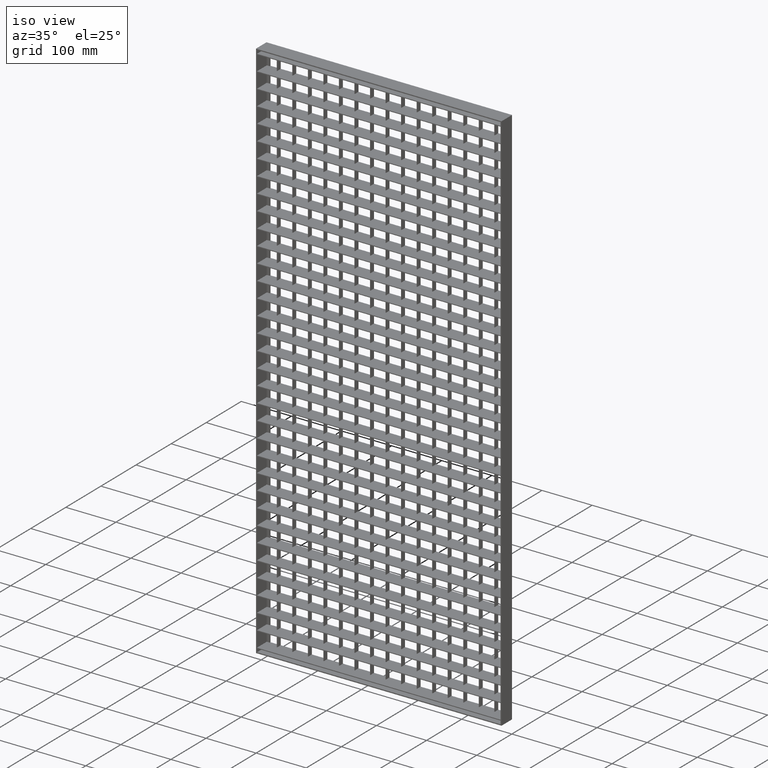
[diagram: clean part render]
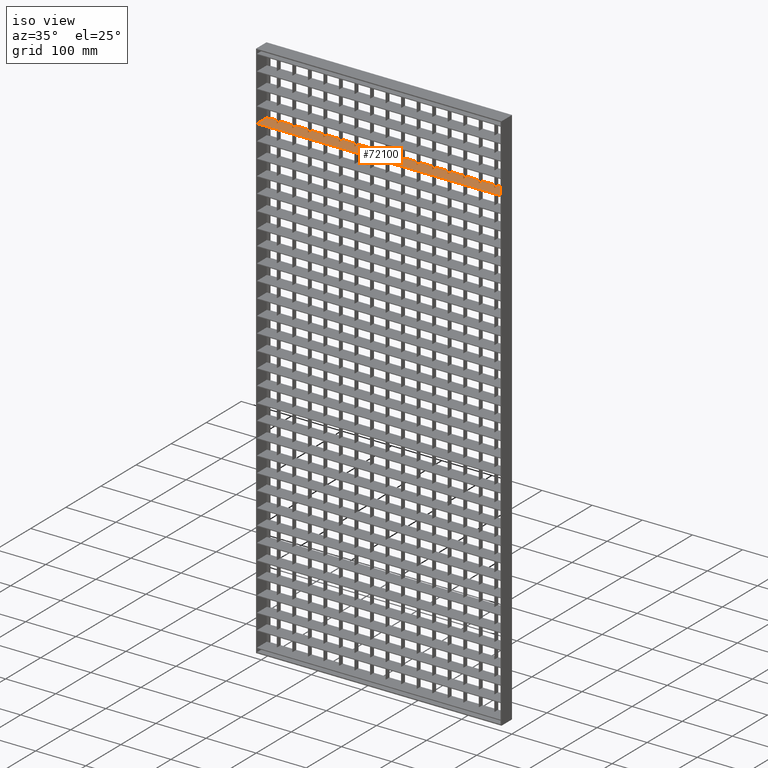
[diagram: same view with one face highlighted and labeled with its STEP entity id]
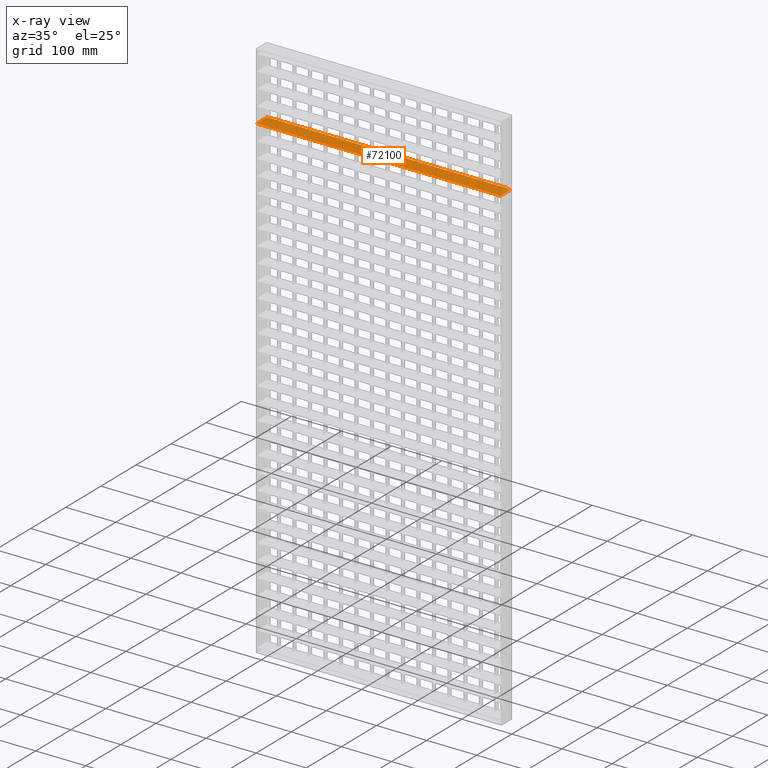
[diagram: x-ray of the same camera — body ghosted, the highlighted face saturated]
A machine part, iso view. The second image highlights one B-rep face of the part: STEP entity #72100.
The next image is the same camera in x-ray: the body ghosted, the highlighted face saturated — about 0% of this face is hidden behind the body in this view.
In plain terms, the highlighted planar face has unit normal (0, 0, 1).
Its self-contained STEP definition (entity closure, byte-faithful):
#72 = DIRECTION ( 'NONE',  ( -1.000000000000000000, -3.061616997868382600E-016, 0.0000000000000000000 ) ) ;
#113 = EDGE_CURVE ( 'NONE', #56566, #2293, #17961, .T. ) ;
#226 = DIRECTION ( 'NONE',  ( -0.0000000000000000000, 1.000000000000000000, 0.0000000000000000000 ) ) ;
#325 = EDGE_CURVE ( 'NONE', #58824, #30288, #18873, .T. ) ;
#619 = CARTESIAN_POINT ( 'NONE',  ( 518.0374765917513300, 15.00000000000015500, -134.7500000000001400 ) ) ;
#930 = EDGE_CURVE ( 'NONE', #43786, #52419, #75637, .T. ) ;
#936 = VECTOR ( 'NONE', #77395, 1000.000000000000000 ) ;
#1126 = VECTOR ( 'NONE', #29047, 1000.000000000000000 ) ;
#1202 = LINE ( 'NONE', #31474, #34933 ) ;
#1244 = VECTOR ( 'NONE', #17277, 1000.000000000000000 ) ;
#1264 = VERTEX_POINT ( 'NONE', #51022 ) ;
#1433 = CARTESIAN_POINT ( 'NONE',  ( 214.5000000000000300, 15.00000000000006000, -134.7500000000001400 ) ) ;
#1537 = LINE ( 'NONE', #3073, #9286 ) ;
#1783 = VERTEX_POINT ( 'NONE', #30168 ) ;
#1809 = CARTESIAN_POINT ( 'NONE',  ( 2.000000000000003100, 13.00000000000000400, -134.7500000000001400 ) ) ;
#1990 = AXIS2_PLACEMENT_3D ( 'NONE', #28885, #35868, #79005 ) ;
#2050 = VERTEX_POINT ( 'NONE', #27419 ) ;
#2218 = VERTEX_POINT ( 'NONE', #59469 ) ;
#2293 = VERTEX_POINT ( 'NONE', #17184 ) ;
#2409 = CARTESIAN_POINT ( 'NONE',  ( 518.0374765917513300, 5.000000000000397900, -134.7500000000001400 ) ) ;
#2921 = VERTEX_POINT ( 'NONE', #7007 ) ;
#3013 = DIRECTION ( 'NONE',  ( -0.0000000000000000000, 1.000000000000000000, 0.0000000000000000000 ) ) ;
#3073 = CARTESIAN_POINT ( 'NONE',  ( 338.5000000000000000, -14.99999999999984500, -134.7500000000001400 ) ) ;
#3263 = VERTEX_POINT ( 'NONE', #17153 ) ;
#3342 = EDGE_CURVE ( 'NONE', #67736, #43047, #9574, .T. ) ;
#3476 = CARTESIAN_POINT ( 'NONE',  ( 213.4999999999999700, 4.999999999999998200, -134.7500000000001400 ) ) ;
#3570 = LINE ( 'NONE', #9510, #71939 ) ;
#3632 = EDGE_CURVE ( 'NONE', #68823, #19344, #29681, .T. ) ;
#3732 = DIRECTION ( 'NONE',  ( -1.000000000000000000, -3.061616997868382600E-016, 0.0000000000000000000 ) ) ;
#3793 = VECTOR ( 'NONE', #29387, 1000.000000000000000 ) ;
#3906 = CARTESIAN_POINT ( 'NONE',  ( 276.5000000000000000, 15.00000000000000000, -134.7500000000001400 ) ) ;
#4040 = DIRECTION ( 'NONE',  ( -1.000000000000000000, 8.673617379884027600E-016, 0.0000000000000000000 ) ) ;
#4176 = PLANE ( 'NONE',  #1990 ) ;
#4179 = ORIENTED_EDGE ( 'NONE', *, *, #36564, .T. ) ;
#4561 = CARTESIAN_POINT ( 'NONE',  ( 369.5000000000001100, 5.000000000000000000, -134.7500000000001400 ) ) ;
#4643 = VERTEX_POINT ( 'NONE', #24504 ) ;
#4694 = EDGE_CURVE ( 'NONE', #77464, #2218, #36642, .T. ) ;
#4762 = LINE ( 'NONE', #33299, #51984 ) ;
#4959 = DIRECTION ( 'NONE',  ( 1.000000000000000000, 8.673617379884027600E-016, -0.0000000000000000000 ) ) ;
#5020 = VECTOR ( 'NONE', #4959, 1000.000000000000000 ) ;
#5085 = VERTEX_POINT ( 'NONE', #71567 ) ;
#5525 = LINE ( 'NONE', #34404, #76862 ) ;
#5780 = VECTOR ( 'NONE', #26511, 1000.000000000000000 ) ;
#5845 = ORIENTED_EDGE ( 'NONE', *, *, #20689, .F. ) ;
#5872 = DIRECTION ( 'NONE',  ( 0.0000000000000000000, -1.000000000000000000, 0.0000000000000000000 ) ) ;
#6057 = EDGE_CURVE ( 'NONE', #76311, #1783, #66258, .T. ) ;
#6064 = CARTESIAN_POINT ( 'NONE',  ( 518.0374765917513300, 4.999999999999922700, -134.7500000000001400 ) ) ;
#6506 = LINE ( 'NONE', #45898, #43061 ) ;
#6702 = ORIENTED_EDGE ( 'NONE', *, *, #29378, .T. ) ;
#6751 = LINE ( 'NONE', #28334, #936 ) ;
#6969 = CARTESIAN_POINT ( 'NONE',  ( 2.000000000000003100, 13.00000000000000500, -134.7500000000001400 ) ) ;
#7007 = CARTESIAN_POINT ( 'NONE',  ( 89.50000000000000000, 15.00000000000000000, -134.7500000000001400 ) ) ;
#7462 = DIRECTION ( 'NONE',  ( 0.0000000000000000000, -1.000000000000000000, 0.0000000000000000000 ) ) ;
#7461 = CARTESIAN_POINT ( 'NONE',  ( 482.0000000000000000, 15.00000000000000400, -134.7500000000001400 ) ) ;
#7491 = DIRECTION ( 'NONE',  ( -1.000000000000000000, -3.061616997868382600E-016, 0.0000000000000000000 ) ) ;
#8204 = VECTOR ( 'NONE', #73620, 1000.000000000000000 ) ;
#8228 = DIRECTION ( 'NONE',  ( -0.0000000000000000000, 1.000000000000000000, 0.0000000000000000000 ) ) ;
#8349 = EDGE_CURVE ( 'NONE', #77904, #78270, #72594, .T. ) ;
#8405 = LINE ( 'NONE', #36523, #50813 ) ;
#8579 = VERTEX_POINT ( 'NONE', #79324 ) ;
#8692 = VERTEX_POINT ( 'NONE', #67675 ) ;
#9048 = CARTESIAN_POINT ( 'NONE',  ( 482.0000000000001700, 13.00000000000035300, -134.7500000000001400 ) ) ;
#9069 = EDGE_CURVE ( 'NONE', #25246, #2050, #22475, .T. ) ;
#9276 = ORIENTED_EDGE ( 'NONE', *, *, #39097, .F. ) ;
#9286 = VECTOR ( 'NONE', #14952, 1000.000000000000000 ) ;
#9353 = DIRECTION ( 'NONE',  ( 0.0000000000000000000, -1.000000000000000000, 0.0000000000000000000 ) ) ;
#9400 = ORIENTED_EDGE ( 'NONE', *, *, #27641, .T. ) ;
#9483 = CARTESIAN_POINT ( 'NONE',  ( 58.50000000000000000, 15.00000000000000000, -134.7500000000001400 ) ) ;
#9510 = CARTESIAN_POINT ( 'NONE',  ( 518.0374765917513300, -14.99999999999984500, -134.7500000000001400 ) ) ;
#9574 = LINE ( 'NONE', #16136, #56768 ) ;
#9724 = DIRECTION ( 'NONE',  ( 0.0000000000000000000, -1.000000000000000000, 0.0000000000000000000 ) ) ;
#9891 = VERTEX_POINT ( 'NONE', #64733 ) ;
#10009 = VECTOR ( 'NONE', #53942, 1000.000000000000000 ) ;
#10238 = EDGE_CURVE ( 'NONE', #25246, #58824, #29983, .T. ) ;
#10441 = DIRECTION ( 'NONE',  ( 0.0000000000000000000, -1.000000000000000000, 0.0000000000000000000 ) ) ;
#10918 = LINE ( 'NONE', #41996, #29185 ) ;
#10930 = DIRECTION ( 'NONE',  ( 1.000000000000000000, 8.673617379884027600E-016, -0.0000000000000000000 ) ) ;
#11031 = EDGE_CURVE ( 'NONE', #8579, #41630, #60729, .T. ) ;
#11316 = ORIENTED_EDGE ( 'NONE', *, *, #38477, .T. ) ;
#11499 = LINE ( 'NONE', #63152, #58693 ) ;
#11674 = CARTESIAN_POINT ( 'NONE',  ( 518.0374765917513300, 5.000000000000370400, -134.7500000000001400 ) ) ;
#11852 = EDGE_CURVE ( 'NONE', #26925, #74263, #50965, .T. ) ;
#12250 = CARTESIAN_POINT ( 'NONE',  ( 462.5000000000000600, 15.00000000000000000, -134.7500000000001400 ) ) ;
#12376 = ORIENTED_EDGE ( 'NONE', *, *, #68385, .T. ) ;
#12589 = EDGE_CURVE ( 'NONE', #61321, #24039, #27653, .T. ) ;
#12756 = ORIENTED_EDGE ( 'NONE', *, *, #72494, .F. ) ;
#12834 = CARTESIAN_POINT ( 'NONE',  ( 59.50000000000005000, 15.00000000000001400, -134.7500000000001400 ) ) ;
#12888 = VECTOR ( 'NONE', #18977, 1000.000000000000000 ) ;
#13120 = VECTOR ( 'NONE', #75238, 1000.000000000000000 ) ;
#13308 = CARTESIAN_POINT ( 'NONE',  ( 518.0374765917513300, 5.000000000000315300, -134.7500000000001400 ) ) ;
#13699 = DIRECTION ( 'NONE',  ( -0.0000000000000000000, -1.000000000000000000, 0.0000000000000000000 ) ) ;
#13844 = DIRECTION ( 'NONE',  ( -1.000000000000000000, -3.061616997868382600E-016, 0.0000000000000000000 ) ) ;
#13983 = EDGE_CURVE ( 'NONE', #24039, #26925, #23494, .T. ) ;
#14190 = ORIENTED_EDGE ( 'NONE', *, *, #14562, .T. ) ;
#14506 = VECTOR ( 'NONE', #58944, 1000.000000000000000 ) ;
#14562 = EDGE_CURVE ( 'NONE', #42443, #61321, #59968, .T. ) ;
#14952 = DIRECTION ( 'NONE',  ( 0.0000000000000000000, -1.000000000000000000, 0.0000000000000000000 ) ) ;
#15037 = LINE ( 'NONE', #6064, #33294 ) ;
#15079 = DIRECTION ( 'NONE',  ( 1.000000000000000000, 8.673617379884027600E-016, -0.0000000000000000000 ) ) ;
#15118 = ORIENTED_EDGE ( 'NONE', *, *, #32215, .F. ) ;
#15121 = LINE ( 'NONE', #61626, #62281 ) ;
#15239 = VECTOR ( 'NONE', #5872, 1000.000000000000000 ) ;
#15276 = CARTESIAN_POINT ( 'NONE',  ( 488.0000000000001100, -14.99999999999984500, -134.7500000000001400 ) ) ;
#15392 = ORIENTED_EDGE ( 'NONE', *, *, #31506, .T. ) ;
#15581 = DIRECTION ( 'NONE',  ( -1.000000000000000000, 8.673617379884027600E-016, 0.0000000000000000000 ) ) ;
#15602 = VECTOR ( 'NONE', #72, 1000.000000000000000 ) ;
#15769 = EDGE_CURVE ( 'NONE', #61774, #77464, #56908, .T. ) ;
#16136 = CARTESIAN_POINT ( 'NONE',  ( 58.50000000000000000, -14.99999999999984500, -134.7500000000001400 ) ) ;
#16155 = VERTEX_POINT ( 'NONE', #75335 ) ;
#16196 = CARTESIAN_POINT ( 'NONE',  ( 518.0374765917513300, 15.00000000000015500, -134.7500000000001400 ) ) ;
#17015 = EDGE_CURVE ( 'NONE', #57237, #59075, #3570, .T. ) ;
#17153 = CARTESIAN_POINT ( 'NONE',  ( 90.50000000000002800, 5.000000000000002700, -134.7500000000001400 ) ) ;
#17184 = CARTESIAN_POINT ( 'NONE',  ( 121.5000000000000000, 15.00000000000003200, -134.7500000000001400 ) ) ;
#17277 = DIRECTION ( 'NONE',  ( 0.0000000000000000000, -1.000000000000000000, 0.0000000000000000000 ) ) ;
#17283 = CARTESIAN_POINT ( 'NONE',  ( 518.0374765917513300, 5.000000000000290400, -134.7500000000001400 ) ) ;
#17345 = ORIENTED_EDGE ( 'NONE', *, *, #56971, .F. ) ;
#17521 = VERTEX_POINT ( 'NONE', #70146 ) ;
#17581 = DIRECTION ( 'NONE',  ( 1.000000000000000000, 8.673617379884027600E-016, -0.0000000000000000000 ) ) ;
#17853 = ORIENTED_EDGE ( 'NONE', *, *, #23488, .T. ) ;
#17911 = CARTESIAN_POINT ( 'NONE',  ( 518.0374765917513300, 4.999999999999842800, -134.7500000000001400 ) ) ;
#17961 = LINE ( 'NONE', #34426, #42956 ) ;
#18133 = CARTESIAN_POINT ( 'NONE',  ( 28.49999999999997200, -14.99999999999984500, -134.7500000000001400 ) ) ;
#18156 = ORIENTED_EDGE ( 'NONE', *, *, #58484, .T. ) ;
#18432 = EDGE_CURVE ( 'NONE', #1264, #27385, #48703, .T. ) ;
#18725 = LINE ( 'NONE', #61902, #33139 ) ;
#18873 = LINE ( 'NONE', #60285, #66070 ) ;
#18889 = CARTESIAN_POINT ( 'NONE',  ( 369.5000000000000600, -14.99999999999984500, -134.7500000000001400 ) ) ;
#18977 = DIRECTION ( 'NONE',  ( -0.0000000000000000000, 1.000000000000000000, 0.0000000000000000000 ) ) ;
#19152 = VECTOR ( 'NONE', #30412, 1000.000000000000000 ) ;
#19252 = CARTESIAN_POINT ( 'NONE',  ( 399.4999999999999400, -14.99999999999984500, -134.7500000000001400 ) ) ;
#19344 = VERTEX_POINT ( 'NONE', #43809 ) ;
#19456 = ORIENTED_EDGE ( 'NONE', *, *, #9069, .F. ) ;
#19772 = CARTESIAN_POINT ( 'NONE',  ( 400.5000000000000000, 5.000000000000000000, -134.7500000000001400 ) ) ;
#20083 = CARTESIAN_POINT ( 'NONE',  ( 120.5000000000000000, -14.99999999999984500, -134.7500000000001400 ) ) ;
#20370 = VECTOR ( 'NONE', #73050, 1000.000000000000000 ) ;
#20434 = DIRECTION ( 'NONE',  ( -0.0000000000000000000, 1.000000000000000000, 0.0000000000000000000 ) ) ;
#20505 = DIRECTION ( 'NONE',  ( -1.000000000000000000, -3.061616997868382600E-016, 0.0000000000000000000 ) ) ;
#20587 = ORIENTED_EDGE ( 'NONE', *, *, #47286, .T. ) ;
#20597 = VECTOR ( 'NONE', #56583, 1000.000000000000000 ) ;
#20689 = EDGE_CURVE ( 'NONE', #3263, #36270, #4762, .T. ) ;
#20803 = LINE ( 'NONE', #15276, #59361 ) ;
#21010 = ORIENTED_EDGE ( 'NONE', *, *, #12589, .T. ) ;
#21161 = DIRECTION ( 'NONE',  ( 1.000000000000000000, 8.673617379884027600E-016, -0.0000000000000000000 ) ) ;
#21346 = CARTESIAN_POINT ( 'NONE',  ( 306.5000000000000000, -14.99999999999984500, -134.7500000000001400 ) ) ;
#21419 = VERTEX_POINT ( 'NONE', #45090 ) ;
#21531 = CARTESIAN_POINT ( 'NONE',  ( 518.0374765917513300, 4.999999999999787700, -134.7500000000001400 ) ) ;
#21957 = VECTOR ( 'NONE', #226, 1000.000000000000000 ) ;
#22143 = CARTESIAN_POINT ( 'NONE',  ( 518.0374765917513300, 4.999999999999895200, -134.7500000000001400 ) ) ;
#22193 = VECTOR ( 'NONE', #41848, 1000.000000000000000 ) ;
#22449 = EDGE_CURVE ( 'NONE', #56413, #69083, #50672, .T. ) ;
#22475 = LINE ( 'NONE', #29669, #64862 ) ;
#22531 = CARTESIAN_POINT ( 'NONE',  ( 307.5000000000000600, 5.000000000000000000, -134.7500000000001400 ) ) ;
#23448 = DIRECTION ( 'NONE',  ( -0.0000000000000000000, 1.000000000000000000, 0.0000000000000000000 ) ) ;
#23488 = EDGE_CURVE ( 'NONE', #43741, #36519, #29210, .T. ) ;
#23494 = LINE ( 'NONE', #21346, #10009 ) ;
#23576 = ORIENTED_EDGE ( 'NONE', *, *, #56493, .F. ) ;
#23744 = CARTESIAN_POINT ( 'NONE',  ( 306.5000000000000600, 5.000000000000000900, -134.7500000000001400 ) ) ;
#23823 = DIRECTION ( 'NONE',  ( -1.000000000000000000, 8.673617379884027600E-016, 0.0000000000000000000 ) ) ;
#24039 = VERTEX_POINT ( 'NONE', #23744 ) ;
#24118 = CARTESIAN_POINT ( 'NONE',  ( 2.000000000000001800, -15.00000000000000400, -134.7500000000001400 ) ) ;
#24390 = VECTOR ( 'NONE', #52171, 1000.000000000000000 ) ;
#24504 = CARTESIAN_POINT ( 'NONE',  ( 462.5000000000000600, 5.000000000000000000, -134.7500000000001400 ) ) ;
#24580 = VERTEX_POINT ( 'NONE', #32118 ) ;
#24717 = VECTOR ( 'NONE', #66668, 1000.000000000000000 ) ;
#24877 = ORIENTED_EDGE ( 'NONE', *, *, #67346, .F. ) ;
#24947 = EDGE_CURVE ( 'NONE', #21419, #43786, #10918, .T. ) ;
#25089 = DIRECTION ( 'NONE',  ( 1.000000000000000000, 8.673617379884027600E-016, -0.0000000000000000000 ) ) ;
#25246 = VERTEX_POINT ( 'NONE', #69159 ) ;
#25421 = EDGE_CURVE ( 'NONE', #43047, #40149, #50405, .T. ) ;
#25501 = VECTOR ( 'NONE', #66507, 1000.000000000000000 ) ;
#25816 = EDGE_CURVE ( 'NONE', #57269, #59075, #62887, .T. ) ;
#25925 = CARTESIAN_POINT ( 'NONE',  ( 152.4999999999999700, -14.99999999999984500, -134.7500000000001400 ) ) ;
#25955 = CARTESIAN_POINT ( 'NONE',  ( 183.5000000000000600, 15.00000000000005200, -134.7500000000001400 ) ) ;
#26005 = LINE ( 'NONE', #29742, #22193 ) ;
#26006 = CARTESIAN_POINT ( 'NONE',  ( 461.5000000000000000, -14.99999999999984500, -134.7500000000001400 ) ) ;
#26058 = ORIENTED_EDGE ( 'NONE', *, *, #36230, .F. ) ;
#26126 = LINE ( 'NONE', #13308, #44474 ) ;
#26151 = LINE ( 'NONE', #16196, #64726 ) ;
#26311 = LINE ( 'NONE', #73607, #76453 ) ;
#26511 = DIRECTION ( 'NONE',  ( 0.0000000000000000000, -1.000000000000000000, 0.0000000000000000000 ) ) ;
#26925 = VERTEX_POINT ( 'NONE', #61590 ) ;
#27201 = ORIENTED_EDGE ( 'NONE', *, *, #28313, .T. ) ;
#27214 = CARTESIAN_POINT ( 'NONE',  ( 152.5000000000000300, 15.00000000000004100, -134.7500000000001400 ) ) ;
#27222 = LINE ( 'NONE', #75889, #24390 ) ;
#27385 = VERTEX_POINT ( 'NONE', #72935 ) ;
#27419 = CARTESIAN_POINT ( 'NONE',  ( 27.49999999999996800, 4.999999999999996400, -134.7500000000001400 ) ) ;
#27641 = EDGE_CURVE ( 'NONE', #51897, #9891, #50075, .T. ) ;
#27653 = LINE ( 'NONE', #45246, #39155 ) ;
#27981 = CARTESIAN_POINT ( 'NONE',  ( 307.5000000000000000, -14.99999999999984500, -134.7500000000001400 ) ) ;
#28177 = CARTESIAN_POINT ( 'NONE',  ( 7.999999999999994700, 15.00000000000000400, -134.7500000000001400 ) ) ;
#28292 = CARTESIAN_POINT ( 'NONE',  ( 183.5000000000000000, -14.99999999999984500, -134.7500000000001400 ) ) ;
#28313 = EDGE_CURVE ( 'NONE', #41630, #44338, #6506, .T. ) ;
#28334 = CARTESIAN_POINT ( 'NONE',  ( 214.5000000000000300, -14.99999999999984500, -134.7500000000001400 ) ) ;
#28375 = CARTESIAN_POINT ( 'NONE',  ( 245.5000000000000000, 15.00000000000007100, -134.7500000000001400 ) ) ;
#28567 = LINE ( 'NONE', #78569, #24717 ) ;
#28638 = ORIENTED_EDGE ( 'NONE', *, *, #54645, .T. ) ;
#28744 = ORIENTED_EDGE ( 'NONE', *, *, #3632, .T. ) ;
#28834 = LINE ( 'NONE', #20083, #5780 ) ;
#28885 = CARTESIAN_POINT ( 'NONE',  ( 518.0374765917513300, -14.99999999999984500, -134.7500000000001400 ) ) ;
#29047 = DIRECTION ( 'NONE',  ( -1.000000000000000000, -3.061616997868382600E-016, 0.0000000000000000000 ) ) ;
#29185 = VECTOR ( 'NONE', #23448, 1000.000000000000000 ) ;
#29210 = LINE ( 'NONE', #37793, #12888 ) ;
#29349 = EDGE_CURVE ( 'NONE', #52688, #79022, #72779, .T. ) ;
#29353 = VECTOR ( 'NONE', #3013, 1000.000000000000000 ) ;
#29378 = EDGE_CURVE ( 'NONE', #38489, #36270, #74726, .T. ) ;
#29387 = DIRECTION ( 'NONE',  ( 1.000000000000000000, 8.673617379884027600E-016, -0.0000000000000000000 ) ) ;
#29438 = LINE ( 'NONE', #75511, #13120 ) ;
#29612 = LINE ( 'NONE', #59295, #63382 ) ;
#29669 = CARTESIAN_POINT ( 'NONE',  ( 27.49999999999996800, -14.99999999999984500, -134.7500000000001400 ) ) ;
#29681 = LINE ( 'NONE', #19252, #46110 ) ;
#29728 = CARTESIAN_POINT ( 'NONE',  ( 518.0374765917513300, 15.00000000000015500, -134.7500000000001400 ) ) ;
#29742 = CARTESIAN_POINT ( 'NONE',  ( 213.5000000000000300, -14.99999999999984500, -134.7500000000001400 ) ) ;
#29785 = CARTESIAN_POINT ( 'NONE',  ( 151.4999999999999700, -14.99999999999984500, -134.7500000000001400 ) ) ;
#29983 = LINE ( 'NONE', #619, #15602 ) ;
#30090 = ORIENTED_EDGE ( 'NONE', *, *, #24947, .T. ) ;
#30168 = CARTESIAN_POINT ( 'NONE',  ( 151.4999999999999700, 4.999999999999996400, -134.7500000000001400 ) ) ;
#30288 = VERTEX_POINT ( 'NONE', #59213 ) ;
#30412 = DIRECTION ( 'NONE',  ( -1.000000000000000000, -3.061616997868382600E-016, 0.0000000000000000000 ) ) ;
#30722 = ORIENTED_EDGE ( 'NONE', *, *, #46470, .T. ) ;
#31056 = ORIENTED_EDGE ( 'NONE', *, *, #42959, .F. ) ;
#31399 = EDGE_CURVE ( 'NONE', #17521, #78142, #78552, .T. ) ;
#31474 = CARTESIAN_POINT ( 'NONE',  ( 518.0374765917513300, 15.00000000000015500, -134.7500000000001400 ) ) ;
#31506 = EDGE_CURVE ( 'NONE', #52419, #56720, #60209, .T. ) ;
#31637 = ORIENTED_EDGE ( 'NONE', *, *, #49827, .F. ) ;
#31762 = EDGE_CURVE ( 'NONE', #70367, #8579, #18725, .T. ) ;
#31812 = ORIENTED_EDGE ( 'NONE', *, *, #55365, .T. ) ;
#31934 = CARTESIAN_POINT ( 'NONE',  ( 368.5000000000000600, 15.00000000000010800, -134.7500000000001400 ) ) ;
#31950 = LINE ( 'NONE', #66022, #60849 ) ;
#32060 = VECTOR ( 'NONE', #13699, 1000.000000000000000 ) ;
#32118 = CARTESIAN_POINT ( 'NONE',  ( 213.5000000000000000, 15.00000000000000000, -134.7500000000001400 ) ) ;
#32142 = DIRECTION ( 'NONE',  ( -1.000000000000000000, -3.061616997868382600E-016, 0.0000000000000000000 ) ) ;
#32215 = EDGE_CURVE ( 'NONE', #27385, #71954, #26311, .T. ) ;
#32847 = VECTOR ( 'NONE', #21161, 1000.000000000000000 ) ;
#32876 = CARTESIAN_POINT ( 'NONE',  ( 518.0374765917513300, 15.00000000000015500, -134.7500000000001400 ) ) ;
#32905 = ORIENTED_EDGE ( 'NONE', *, *, #36335, .T. ) ;
#33139 = VECTOR ( 'NONE', #62971, 1000.000000000000000 ) ;
#33294 = VECTOR ( 'NONE', #60171, 1000.000000000000000 ) ;
#33299 = CARTESIAN_POINT ( 'NONE',  ( 90.50000000000002800, -14.99999999999984500, -134.7500000000001400 ) ) ;
#33695 = ORIENTED_EDGE ( 'NONE', *, *, #13983, .T. ) ;
#34404 = CARTESIAN_POINT ( 'NONE',  ( 518.0374765917513300, 15.00000000000015500, -134.7500000000001400 ) ) ;
#34426 = CARTESIAN_POINT ( 'NONE',  ( 121.5000000000000000, -14.99999999999984500, -134.7500000000001400 ) ) ;
#34725 = VECTOR ( 'NONE', #20434, 1000.000000000000000 ) ;
#34808 = ORIENTED_EDGE ( 'NONE', *, *, #35911, .T. ) ;
#34933 = VECTOR ( 'NONE', #38693, 1000.000000000000000 ) ;
#35360 = LINE ( 'NONE', #18889, #68049 ) ;
#35610 = EDGE_CURVE ( 'NONE', #67736, #66051, #5525, .T. ) ;
#35733 = VERTEX_POINT ( 'NONE', #4561 ) ;
#35868 = DIRECTION ( 'NONE',  ( 0.0000000000000000000, 0.0000000000000000000, 1.000000000000000000 ) ) ;
#35911 = EDGE_CURVE ( 'NONE', #44338, #4643, #8405, .T. ) ;
#36029 = CARTESIAN_POINT ( 'NONE',  ( 338.5000000000000600, 15.00000000000000000, -134.7500000000001400 ) ) ;
#36074 = EDGE_CURVE ( 'NONE', #30288, #57269, #46857, .T. ) ;
#36102 = CARTESIAN_POINT ( 'NONE',  ( 518.0374765917513300, 5.000000000000235400, -134.7500000000001400 ) ) ;
#36207 = CARTESIAN_POINT ( 'NONE',  ( 400.5000000000000000, 15.00000000000000000, -134.7500000000001400 ) ) ;
#36230 = EDGE_CURVE ( 'NONE', #70367, #57237, #20803, .T. ) ;
#36270 = VERTEX_POINT ( 'NONE', #36694 ) ;
#36315 = LINE ( 'NONE', #52465, #63299 ) ;
#36335 = EDGE_CURVE ( 'NONE', #68040, #21419, #15037, .T. ) ;
#36519 = VERTEX_POINT ( 'NONE', #51548 ) ;
#36523 = CARTESIAN_POINT ( 'NONE',  ( 462.5000000000000000, -14.99999999999984500, -134.7500000000001400 ) ) ;
#36564 = EDGE_CURVE ( 'NONE', #2218, #71954, #29438, .T. ) ;
#36642 = LINE ( 'NONE', #62448, #34725 ) ;
#36694 = CARTESIAN_POINT ( 'NONE',  ( 90.50000000000002800, 15.00000000000002300, -134.7500000000001400 ) ) ;
#36750 = CARTESIAN_POINT ( 'NONE',  ( 368.5000000000001100, 5.000000000000000900, -134.7500000000001400 ) ) ;
#36891 = ORIENTED_EDGE ( 'NONE', *, *, #25816, .T. ) ;
#37660 = CARTESIAN_POINT ( 'NONE',  ( 430.5000000000000000, 15.00000000000012800, -134.7500000000001400 ) ) ;
#37793 = CARTESIAN_POINT ( 'NONE',  ( 337.5000000000000000, -14.99999999999984500, -134.7500000000001400 ) ) ;
#38085 = ORIENTED_EDGE ( 'NONE', *, *, #55686, .T. ) ;
#38274 = LINE ( 'NONE', #68328, #21957 ) ;
#38477 = EDGE_CURVE ( 'NONE', #2921, #52554, #1202, .T. ) ;
#38489 = VERTEX_POINT ( 'NONE', #44136 ) ;
#38693 = DIRECTION ( 'NONE',  ( -1.000000000000000000, -3.061616997868382600E-016, 0.0000000000000000000 ) ) ;
#39080 = VECTOR ( 'NONE', #65759, 1000.000000000000000 ) ;
#39097 = EDGE_CURVE ( 'NONE', #2050, #63610, #47354, .T. ) ;
#39155 = VECTOR ( 'NONE', #4040, 1000.000000000000000 ) ;
#40077 = DIRECTION ( 'NONE',  ( -1.000000000000000000, -3.061616997868382600E-016, 0.0000000000000000000 ) ) ;
#40149 = VERTEX_POINT ( 'NONE', #76437 ) ;
#40783 = VECTOR ( 'NONE', #15079, 1000.000000000000000 ) ;
#40935 = ORIENTED_EDGE ( 'NONE', *, *, #50567, .T. ) ;
#41184 = CARTESIAN_POINT ( 'NONE',  ( 400.4999999999999400, -14.99999999999984500, -134.7500000000001400 ) ) ;
#41309 = EDGE_CURVE ( 'NONE', #74263, #61774, #44985, .T. ) ;
#41338 = EDGE_CURVE ( 'NONE', #76539, #1264, #28567, .T. ) ;
#41630 = VERTEX_POINT ( 'NONE', #7461 ) ;
#41848 = DIRECTION ( 'NONE',  ( 0.0000000000000000000, -1.000000000000000000, 0.0000000000000000000 ) ) ;
#41908 = VECTOR ( 'NONE', #32142, 1000.000000000000000 ) ;
#41996 = CARTESIAN_POINT ( 'NONE',  ( 430.5000000000000000, -14.99999999999984500, -134.7500000000001400 ) ) ;
#42443 = VERTEX_POINT ( 'NONE', #78315 ) ;
#42533 = ORIENTED_EDGE ( 'NONE', *, *, #18432, .F. ) ;
#42550 = ORIENTED_EDGE ( 'NONE', *, *, #3342, .F. ) ;
#42602 = LINE ( 'NONE', #73021, #1244 ) ;
#42795 = VECTOR ( 'NONE', #54549, 1000.000000000000000 ) ;
#42956 = VECTOR ( 'NONE', #46863, 1000.000000000000000 ) ;
#42959 = EDGE_CURVE ( 'NONE', #5085, #56566, #49448, .T. ) ;
#42980 = DIRECTION ( 'NONE',  ( 0.0000000000000000000, -1.000000000000000000, 0.0000000000000000000 ) ) ;
#43047 = VERTEX_POINT ( 'NONE', #68208 ) ;
#43049 = CARTESIAN_POINT ( 'NONE',  ( 518.0374765917513300, 15.00000000000015500, -134.7500000000001400 ) ) ;
#43061 = VECTOR ( 'NONE', #46422, 1000.000000000000000 ) ;
#43741 = VERTEX_POINT ( 'NONE', #73546 ) ;
#43786 = VERTEX_POINT ( 'NONE', #37660 ) ;
#43801 = DIRECTION ( 'NONE',  ( -0.0000000000000000000, 1.000000000000000000, 0.0000000000000000000 ) ) ;
#43809 = CARTESIAN_POINT ( 'NONE',  ( 399.4999999999999400, 15.00000000000011700, -134.7500000000001400 ) ) ;
#43906 = CARTESIAN_POINT ( 'NONE',  ( 368.5000000000000600, -14.99999999999984500, -134.7500000000001400 ) ) ;
#44016 = CARTESIAN_POINT ( 'NONE',  ( 182.5000000000000000, -14.99999999999984500, -134.7500000000001400 ) ) ;
#44136 = CARTESIAN_POINT ( 'NONE',  ( 120.5000000000000000, 15.00000000000000000, -134.7500000000001400 ) ) ;
#44243 = VECTOR ( 'NONE', #43801, 1000.000000000000000 ) ;
#44338 = VERTEX_POINT ( 'NONE', #12250 ) ;
#44474 = VECTOR ( 'NONE', #17581, 1000.000000000000000 ) ;
#44485 = VERTEX_POINT ( 'NONE', #1433 ) ;
#44651 = CARTESIAN_POINT ( 'NONE',  ( 431.5000000000000600, 15.00000000000000000, -134.7500000000001400 ) ) ;
#44721 = EDGE_CURVE ( 'NONE', #56720, #68823, #74154, .T. ) ;
#44733 = ORIENTED_EDGE ( 'NONE', *, *, #6057, .F. ) ;
#44884 = DIRECTION ( 'NONE',  ( -1.000000000000000000, 0.0000000000000000000, 0.0000000000000000000 ) ) ;
#44925 = CARTESIAN_POINT ( 'NONE',  ( 244.5000000000000000, 15.00000000000000000, -134.7500000000001400 ) ) ;
#44985 = LINE ( 'NONE', #47067, #78682 ) ;
#45090 = CARTESIAN_POINT ( 'NONE',  ( 430.5000000000000600, 5.000000000000000900, -134.7500000000001400 ) ) ;
#45167 = CARTESIAN_POINT ( 'NONE',  ( 2.000000000000003100, -15.00000000000000000, -134.7500000000001400 ) ) ;
#45246 = CARTESIAN_POINT ( 'NONE',  ( 518.0374765917513300, 4.999999999999815300, -134.7500000000001400 ) ) ;
#45273 = EDGE_LOOP ( 'NONE', ( #27201, #34808, #12376, #9400, #79051, #31812, #32905, #30090, #60332, #15392, #56702, #28744, #53909, #30722, #18156, #73323, #38085, #46343, #28638, #17853, #46088, #14190, #21010, #33695, #64117, #57435, #64490, #47296, #4179, #15118, #42533, #79490, #20587, #17345, #69030, #23576, #40935, #66969, #24877, #74575, #48165, #78128, #12756, #44733, #68830, #56661, #31056, #31637, #6702, #5845, #70742, #59488, #11316, #75978, #76299, #42550, #54782, #62300, #9276, #19456, #59409, #64587, #74158, #36891, #72669, #26058, #58132, #52557 ) ) ;
#45588 = DIRECTION ( 'NONE',  ( -1.000000000000000000, -3.061616997868382600E-016, 0.0000000000000000000 ) ) ;
#45898 = CARTESIAN_POINT ( 'NONE',  ( 518.0374765917513300, 15.00000000000015500, -134.7500000000001400 ) ) ;
#45918 = DIRECTION ( 'NONE',  ( -8.673617379884034500E-016, 1.000000000000000000, 0.0000000000000000000 ) ) ;
#45960 = EDGE_CURVE ( 'NONE', #40149, #52554, #38274, .T. ) ;
#46088 = ORIENTED_EDGE ( 'NONE', *, *, #49898, .T. ) ;
#46110 = VECTOR ( 'NONE', #74760, 1000.000000000000000 ) ;
#46343 = ORIENTED_EDGE ( 'NONE', *, *, #51528, .T. ) ;
#46422 = DIRECTION ( 'NONE',  ( -1.000000000000000000, -3.061616997868382600E-016, 0.0000000000000000000 ) ) ;
#46470 = EDGE_CURVE ( 'NONE', #69633, #35733, #35360, .T. ) ;
#46857 = LINE ( 'NONE', #1809, #54587 ) ;
#46863 = DIRECTION ( 'NONE',  ( -0.0000000000000000000, 1.000000000000000000, 0.0000000000000000000 ) ) ;
#46876 = DIRECTION ( 'NONE',  ( -1.000000000000000000, -3.061616997868382600E-016, 0.0000000000000000000 ) ) ;
#47067 = CARTESIAN_POINT ( 'NONE',  ( 276.4999999999999400, -14.99999999999984500, -134.7500000000001400 ) ) ;
#47286 = EDGE_CURVE ( 'NONE', #76539, #44485, #62900, .T. ) ;
#47296 = ORIENTED_EDGE ( 'NONE', *, *, #4694, .T. ) ;
#47354 = LINE ( 'NONE', #63964, #32847 ) ;
#48165 = ORIENTED_EDGE ( 'NONE', *, *, #71226, .T. ) ;
#48287 = CARTESIAN_POINT ( 'NONE',  ( 461.5000000000000600, 5.000000000000000900, -134.7500000000001400 ) ) ;
#48587 = LINE ( 'NONE', #32876, #70740 ) ;
#48703 = LINE ( 'NONE', #36102, #39080 ) ;
#48983 = CARTESIAN_POINT ( 'NONE',  ( 275.5000000000000000, 5.000000000000000900, -134.7500000000001400 ) ) ;
#49448 = LINE ( 'NONE', #60174, #57170 ) ;
#49545 = CARTESIAN_POINT ( 'NONE',  ( 431.5000000000000600, 5.000000000000000000, -134.7500000000001400 ) ) ;
#49827 = EDGE_CURVE ( 'NONE', #38489, #5085, #28834, .T. ) ;
#49898 = EDGE_CURVE ( 'NONE', #36519, #42443, #11499, .T. ) ;
#50075 = LINE ( 'NONE', #26006, #44243 ) ;
#50146 = DIRECTION ( 'NONE',  ( 0.0000000000000000000, -1.000000000000000000, 0.0000000000000000000 ) ) ;
#50405 = LINE ( 'NONE', #2409, #40783 ) ;
#50567 = EDGE_CURVE ( 'NONE', #24580, #78142, #29612, .T. ) ;
#50623 = LINE ( 'NONE', #18133, #8204 ) ;
#50672 = LINE ( 'NONE', #44016, #57376 ) ;
#50813 = VECTOR ( 'NONE', #42980, 1000.000000000000000 ) ;
#50965 = LINE ( 'NONE', #43049, #19152 ) ;
#51022 = CARTESIAN_POINT ( 'NONE',  ( 244.5000000000000000, 4.999999999999997300, -134.7500000000001400 ) ) ;
#51319 = LINE ( 'NONE', #17911, #79385 ) ;
#51528 = EDGE_CURVE ( 'NONE', #58345, #8692, #1537, .T. ) ;
#51548 = CARTESIAN_POINT ( 'NONE',  ( 337.5000000000000000, 15.00000000000009800, -134.7500000000001400 ) ) ;
#51649 = VECTOR ( 'NONE', #8228, 1000.000000000000000 ) ;
#51897 = VERTEX_POINT ( 'NONE', #48287 ) ;
#51984 = VECTOR ( 'NONE', #71008, 1000.000000000000000 ) ;
#52171 = DIRECTION ( 'NONE',  ( -1.000000000000000000, -3.061616997868382600E-016, 0.0000000000000000000 ) ) ;
#52419 = VERTEX_POINT ( 'NONE', #36207 ) ;
#52465 = CARTESIAN_POINT ( 'NONE',  ( 518.0374765917513300, 4.999999999999950300, -134.7500000000001400 ) ) ;
#52554 = VERTEX_POINT ( 'NONE', #12834 ) ;
#52557 = ORIENTED_EDGE ( 'NONE', *, *, #11031, .T. ) ;
#52688 = VERTEX_POINT ( 'NONE', #53189 ) ;
#52936 = LINE ( 'NONE', #17283, #3793 ) ;
#53084 = EDGE_CURVE ( 'NONE', #64260, #60435, #75766, .T. ) ;
#53189 = CARTESIAN_POINT ( 'NONE',  ( 152.4999999999999700, 5.000000000000002700, -134.7500000000001400 ) ) ;
#53909 = ORIENTED_EDGE ( 'NONE', *, *, #66288, .T. ) ;
#53942 = DIRECTION ( 'NONE',  ( -0.0000000000000000000, 1.000000000000000000, 0.0000000000000000000 ) ) ;
#54317 = EDGE_CURVE ( 'NONE', #9891, #59725, #27222, .T. ) ;
#54549 = DIRECTION ( 'NONE',  ( -1.000000000000000000, -3.061616997868382600E-016, 0.0000000000000000000 ) ) ;
#54587 = VECTOR ( 'NONE', #44884, 1000.000000000000000 ) ;
#54645 = EDGE_CURVE ( 'NONE', #8692, #43741, #51319, .T. ) ;
#54782 = ORIENTED_EDGE ( 'NONE', *, *, #35610, .T. ) ;
#55365 = EDGE_CURVE ( 'NONE', #59725, #68040, #42602, .T. ) ;
#55686 = EDGE_CURVE ( 'NONE', #78270, #58345, #26151, .T. ) ;
#56066 = LINE ( 'NONE', #65947, #1126 ) ;
#56413 = VERTEX_POINT ( 'NONE', #78030 ) ;
#56441 = CARTESIAN_POINT ( 'NONE',  ( 399.5000000000000000, 5.000000000000000900, -134.7500000000001400 ) ) ;
#56493 = EDGE_CURVE ( 'NONE', #24580, #64260, #26005, .T. ) ;
#56566 = VERTEX_POINT ( 'NONE', #73921 ) ;
#56583 = DIRECTION ( 'NONE',  ( -0.0000000000000000000, 1.000000000000000000, 0.0000000000000000000 ) ) ;
#56661 = ORIENTED_EDGE ( 'NONE', *, *, #113, .F. ) ;
#56702 = ORIENTED_EDGE ( 'NONE', *, *, #44721, .T. ) ;
#56720 = VERTEX_POINT ( 'NONE', #19772 ) ;
#56768 = VECTOR ( 'NONE', #78054, 1000.000000000000000 ) ;
#56908 = LINE ( 'NONE', #21531, #14506 ) ;
#56971 = EDGE_CURVE ( 'NONE', #60435, #44485, #6751, .T. ) ;
#57170 = VECTOR ( 'NONE', #10930, 1000.000000000000000 ) ;
#57237 = VERTEX_POINT ( 'NONE', #67239 ) ;
#57269 = VERTEX_POINT ( 'NONE', #6969 ) ;
#57376 = VECTOR ( 'NONE', #7462, 1000.000000000000000 ) ;
#57435 = ORIENTED_EDGE ( 'NONE', *, *, #41309, .T. ) ;
#57791 = VECTOR ( 'NONE', #58743, 1000.000000000000000 ) ;
#58132 = ORIENTED_EDGE ( 'NONE', *, *, #31762, .T. ) ;
#58345 = VERTEX_POINT ( 'NONE', #36029 ) ;
#58484 = EDGE_CURVE ( 'NONE', #35733, #77904, #15121, .T. ) ;
#58693 = VECTOR ( 'NONE', #7491, 1000.000000000000000 ) ;
#58743 = DIRECTION ( 'NONE',  ( -1.000000000000000000, 8.673617379884027600E-016, 0.0000000000000000000 ) ) ;
#58824 = VERTEX_POINT ( 'NONE', #28177 ) ;
#58944 = DIRECTION ( 'NONE',  ( -1.000000000000000000, 8.673617379884027600E-016, 0.0000000000000000000 ) ) ;
#59075 = VERTEX_POINT ( 'NONE', #24118 ) ;
#59213 = CARTESIAN_POINT ( 'NONE',  ( 7.999999999999992900, 13.00000000000000400, -134.7500000000001400 ) ) ;
#59295 = CARTESIAN_POINT ( 'NONE',  ( 518.0374765917513300, 15.00000000000015500, -134.7500000000001400 ) ) ;
#59349 = VECTOR ( 'NONE', #25089, 1000.000000000000000 ) ;
#59361 = VECTOR ( 'NONE', #9353, 1000.000000000000000 ) ;
#59409 = ORIENTED_EDGE ( 'NONE', *, *, #10238, .T. ) ;
#59435 = CARTESIAN_POINT ( 'NONE',  ( 487.9999999999998900, 13.00000000000000400, -134.7500000000001400 ) ) ;
#59469 = CARTESIAN_POINT ( 'NONE',  ( 275.4999999999999400, 15.00000000000008000, -134.7500000000001400 ) ) ;
#59488 = ORIENTED_EDGE ( 'NONE', *, *, #66137, .F. ) ;
#59725 = VERTEX_POINT ( 'NONE', #44651 ) ;
#59968 = LINE ( 'NONE', #27981, #67673 ) ;
#60171 = DIRECTION ( 'NONE',  ( -1.000000000000000000, 8.673617379884027600E-016, 0.0000000000000000000 ) ) ;
#60174 = CARTESIAN_POINT ( 'NONE',  ( 518.0374765917513300, 5.000000000000342800, -134.7500000000001400 ) ) ;
#60209 = LINE ( 'NONE', #41184, #25501 ) ;
#60285 = CARTESIAN_POINT ( 'NONE',  ( 7.999999999999992900, 13.00000000000000400, -134.7500000000001400 ) ) ;
#60332 = ORIENTED_EDGE ( 'NONE', *, *, #930, .T. ) ;
#60435 = VERTEX_POINT ( 'NONE', #68242 ) ;
#60729 = LINE ( 'NONE', #9048, #65594 ) ;
#60849 = VECTOR ( 'NONE', #71710, 1000.000000000000000 ) ;
#60907 = DIRECTION ( 'NONE',  ( 0.0000000000000000000, -1.000000000000000000, 0.0000000000000000000 ) ) ;
#61321 = VERTEX_POINT ( 'NONE', #22531 ) ;
#61590 = CARTESIAN_POINT ( 'NONE',  ( 306.5000000000000000, 15.00000000000008900, -134.7500000000001400 ) ) ;
#61626 = CARTESIAN_POINT ( 'NONE',  ( 518.0374765917513300, 4.999999999999871200, -134.7500000000001400 ) ) ;
#61774 = VERTEX_POINT ( 'NONE', #69274 ) ;
#61902 = CARTESIAN_POINT ( 'NONE',  ( 244.9999999999998900, 13.00000000000000400, -134.7500000000001400 ) ) ;
#61986 = CARTESIAN_POINT ( 'NONE',  ( 518.0374765917513300, 5.000000000000262900, -134.7500000000001400 ) ) ;
#62281 = VECTOR ( 'NONE', #74034, 1000.000000000000000 ) ;
#62300 = ORIENTED_EDGE ( 'NONE', *, *, #71017, .F. ) ;
#62448 = CARTESIAN_POINT ( 'NONE',  ( 275.4999999999999400, -14.99999999999984500, -134.7500000000001400 ) ) ;
#62887 = LINE ( 'NONE', #45167, #32060 ) ;
#62900 = LINE ( 'NONE', #75897, #65839 ) ;
#62971 = DIRECTION ( 'NONE',  ( -1.000000000000000000, 0.0000000000000000000, 0.0000000000000000000 ) ) ;
#63152 = CARTESIAN_POINT ( 'NONE',  ( 518.0374765917513300, 15.00000000000015500, -134.7500000000001400 ) ) ;
#63299 = VECTOR ( 'NONE', #15581, 1000.000000000000000 ) ;
#63382 = VECTOR ( 'NONE', #20505, 1000.000000000000000 ) ;
#63610 = VERTEX_POINT ( 'NONE', #70284 ) ;
#63964 = CARTESIAN_POINT ( 'NONE',  ( 518.0374765917513300, 5.000000000000422800, -134.7500000000001400 ) ) ;
#64117 = ORIENTED_EDGE ( 'NONE', *, *, #11852, .T. ) ;
#64260 = VERTEX_POINT ( 'NONE', #3476 ) ;
#64490 = ORIENTED_EDGE ( 'NONE', *, *, #15769, .T. ) ;
#64587 = ORIENTED_EDGE ( 'NONE', *, *, #325, .T. ) ;
#64726 = VECTOR ( 'NONE', #46876, 1000.000000000000000 ) ;
#64733 = CARTESIAN_POINT ( 'NONE',  ( 461.5000000000000000, 15.00000000000013700, -134.7500000000001400 ) ) ;
#64862 = VECTOR ( 'NONE', #60907, 1000.000000000000000 ) ;
#64902 = CARTESIAN_POINT ( 'NONE',  ( 369.5000000000001100, 15.00000000000000000, -134.7500000000001400 ) ) ;
#65594 = VECTOR ( 'NONE', #45918, 1000.000000000000000 ) ;
#65759 = DIRECTION ( 'NONE',  ( 1.000000000000000000, 8.673617379884027600E-016, -0.0000000000000000000 ) ) ;
#65839 = VECTOR ( 'NONE', #3732, 1000.000000000000000 ) ;
#65947 = CARTESIAN_POINT ( 'NONE',  ( 518.0374765917513300, 15.00000000000015500, -134.7500000000001400 ) ) ;
#66022 = CARTESIAN_POINT ( 'NONE',  ( 89.50000000000002800, -14.99999999999984500, -134.7500000000001400 ) ) ;
#66051 = VERTEX_POINT ( 'NONE', #71731 ) ;
#66070 = VECTOR ( 'NONE', #71887, 1000.000000000000000 ) ;
#66137 = EDGE_CURVE ( 'NONE', #2921, #16155, #31950, .T. ) ;
#66258 = LINE ( 'NONE', #29785, #15239 ) ;
#66288 = EDGE_CURVE ( 'NONE', #19344, #69633, #75339, .T. ) ;
#66507 = DIRECTION ( 'NONE',  ( 0.0000000000000000000, -1.000000000000000000, 0.0000000000000000000 ) ) ;
#66668 = DIRECTION ( 'NONE',  ( 0.0000000000000000000, -1.000000000000000000, 0.0000000000000000000 ) ) ;
#66969 = ORIENTED_EDGE ( 'NONE', *, *, #31399, .F. ) ;
#67089 = CARTESIAN_POINT ( 'NONE',  ( 518.0374765917513300, 15.00000000000015500, -134.7500000000001400 ) ) ;
#67239 = CARTESIAN_POINT ( 'NONE',  ( 488.0000000000001100, -15.00000000000000400, -134.7500000000001400 ) ) ;
#67346 = EDGE_CURVE ( 'NONE', #69083, #17521, #52936, .T. ) ;
#67673 = VECTOR ( 'NONE', #9724, 1000.000000000000000 ) ;
#67675 = CARTESIAN_POINT ( 'NONE',  ( 338.5000000000000600, 5.000000000000000000, -134.7500000000001400 ) ) ;
#67736 = VERTEX_POINT ( 'NONE', #9483 ) ;
#68040 = VERTEX_POINT ( 'NONE', #49545 ) ;
#68049 = VECTOR ( 'NONE', #50146, 1000.000000000000000 ) ;
#68208 = CARTESIAN_POINT ( 'NONE',  ( 58.49999999999994300, 4.999999999999999100, -134.7500000000001400 ) ) ;
#68242 = CARTESIAN_POINT ( 'NONE',  ( 214.5000000000000300, 5.000000000000002700, -134.7500000000001400 ) ) ;
#68328 = CARTESIAN_POINT ( 'NONE',  ( 59.50000000000000000, -14.99999999999984500, -134.7500000000001400 ) ) ;
#68385 = EDGE_CURVE ( 'NONE', #4643, #51897, #36315, .T. ) ;
#68823 = VERTEX_POINT ( 'NONE', #56441 ) ;
#68830 = ORIENTED_EDGE ( 'NONE', *, *, #76156, .T. ) ;
#69013 = CARTESIAN_POINT ( 'NONE',  ( 518.0374765917513300, 15.00000000000015500, -134.7500000000001400 ) ) ;
#69030 = ORIENTED_EDGE ( 'NONE', *, *, #53084, .F. ) ;
#69083 = VERTEX_POINT ( 'NONE', #76626 ) ;
#69159 = CARTESIAN_POINT ( 'NONE',  ( 27.49999999999999600, 15.00000000000000000, -134.7500000000001400 ) ) ;
#69274 = CARTESIAN_POINT ( 'NONE',  ( 276.5000000000000000, 5.000000000000000000, -134.7500000000001400 ) ) ;
#69633 = VERTEX_POINT ( 'NONE', #64902 ) ;
#70146 = CARTESIAN_POINT ( 'NONE',  ( 183.5000000000000000, 5.000000000000002700, -134.7500000000001400 ) ) ;
#70284 = CARTESIAN_POINT ( 'NONE',  ( 28.49999999999997200, 5.000000000000002700, -134.7500000000001400 ) ) ;
#70367 = VERTEX_POINT ( 'NONE', #59435 ) ;
#70740 = VECTOR ( 'NONE', #13844, 1000.000000000000000 ) ;
#70742 = ORIENTED_EDGE ( 'NONE', *, *, #72560, .F. ) ;
#71008 = DIRECTION ( 'NONE',  ( -0.0000000000000000000, 1.000000000000000000, 0.0000000000000000000 ) ) ;
#71017 = EDGE_CURVE ( 'NONE', #63610, #66051, #50623, .T. ) ;
#71226 = EDGE_CURVE ( 'NONE', #56413, #79022, #48587, .T. ) ;
#71567 = CARTESIAN_POINT ( 'NONE',  ( 120.5000000000000000, 4.999999999999997300, -134.7500000000001400 ) ) ;
#71710 = DIRECTION ( 'NONE',  ( 0.0000000000000000000, -1.000000000000000000, 0.0000000000000000000 ) ) ;
#71731 = CARTESIAN_POINT ( 'NONE',  ( 28.50000000000002500, 15.00000000000000500, -134.7500000000001400 ) ) ;
#71887 = DIRECTION ( 'NONE',  ( -8.673617379884035500E-016, -1.000000000000000000, 0.0000000000000000000 ) ) ;
#71939 = VECTOR ( 'NONE', #45588, 1000.000000000000000 ) ;
#71954 = VERTEX_POINT ( 'NONE', #28375 ) ;
#72100 = ADVANCED_FACE ( 'NONE', ( #72519 ), #4176, .T. ) ;
#72494 = EDGE_CURVE ( 'NONE', #1783, #52688, #26126, .T. ) ;
#72519 = FACE_OUTER_BOUND ( 'NONE', #45273, .T. ) ;
#72560 = EDGE_CURVE ( 'NONE', #16155, #3263, #73385, .T. ) ;
#72594 = LINE ( 'NONE', #43906, #20597 ) ;
#72669 = ORIENTED_EDGE ( 'NONE', *, *, #17015, .F. ) ;
#72779 = LINE ( 'NONE', #25925, #51649 ) ;
#72935 = CARTESIAN_POINT ( 'NONE',  ( 245.5000000000000000, 5.000000000000002700, -134.7500000000001400 ) ) ;
#73021 = CARTESIAN_POINT ( 'NONE',  ( 431.5000000000000000, -14.99999999999984500, -134.7500000000001400 ) ) ;
#73050 = DIRECTION ( 'NONE',  ( -1.000000000000000000, -3.061616997868382600E-016, 0.0000000000000000000 ) ) ;
#73323 = ORIENTED_EDGE ( 'NONE', *, *, #8349, .T. ) ;
#73385 = LINE ( 'NONE', #11674, #5020 ) ;
#73546 = CARTESIAN_POINT ( 'NONE',  ( 337.5000000000000600, 5.000000000000000900, -134.7500000000001400 ) ) ;
#73607 = CARTESIAN_POINT ( 'NONE',  ( 245.5000000000000000, -14.99999999999984500, -134.7500000000001400 ) ) ;
#73620 = DIRECTION ( 'NONE',  ( -0.0000000000000000000, 1.000000000000000000, 0.0000000000000000000 ) ) ;
#73921 = CARTESIAN_POINT ( 'NONE',  ( 121.5000000000000000, 5.000000000000002700, -134.7500000000001400 ) ) ;
#74034 = DIRECTION ( 'NONE',  ( -1.000000000000000000, 8.673617379884027600E-016, 0.0000000000000000000 ) ) ;
#74154 = LINE ( 'NONE', #22143, #57791 ) ;
#74158 = ORIENTED_EDGE ( 'NONE', *, *, #36074, .T. ) ;
#74263 = VERTEX_POINT ( 'NONE', #3906 ) ;
#74559 = CARTESIAN_POINT ( 'NONE',  ( 151.5000000000000000, 15.00000000000000000, -134.7500000000001400 ) ) ;
#74575 = ORIENTED_EDGE ( 'NONE', *, *, #22449, .F. ) ;
#74726 = LINE ( 'NONE', #69013, #41908 ) ;
#74760 = DIRECTION ( 'NONE',  ( -0.0000000000000000000, 1.000000000000000000, 0.0000000000000000000 ) ) ;
#75238 = DIRECTION ( 'NONE',  ( -1.000000000000000000, -3.061616997868382600E-016, 0.0000000000000000000 ) ) ;
#75335 = CARTESIAN_POINT ( 'NONE',  ( 89.49999999999997200, 4.999999999999998200, -134.7500000000001400 ) ) ;
#75339 = LINE ( 'NONE', #67089, #20370 ) ;
#75511 = CARTESIAN_POINT ( 'NONE',  ( 518.0374765917513300, 15.00000000000015500, -134.7500000000001400 ) ) ;
#75637 = LINE ( 'NONE', #29728, #42795 ) ;
#75766 = LINE ( 'NONE', #61986, #59349 ) ;
#75889 = CARTESIAN_POINT ( 'NONE',  ( 518.0374765917513300, 15.00000000000015500, -134.7500000000001400 ) ) ;
#75897 = CARTESIAN_POINT ( 'NONE',  ( 518.0374765917513300, 15.00000000000015500, -134.7500000000001400 ) ) ;
#75978 = ORIENTED_EDGE ( 'NONE', *, *, #45960, .F. ) ;
#76156 = EDGE_CURVE ( 'NONE', #76311, #2293, #56066, .T. ) ;
#76299 = ORIENTED_EDGE ( 'NONE', *, *, #25421, .F. ) ;
#76311 = VERTEX_POINT ( 'NONE', #74559 ) ;
#76437 = CARTESIAN_POINT ( 'NONE',  ( 59.50000000000000000, 5.000000000000002700, -134.7500000000001400 ) ) ;
#76453 = VECTOR ( 'NONE', #79555, 1000.000000000000000 ) ;
#76539 = VERTEX_POINT ( 'NONE', #44925 ) ;
#76626 = CARTESIAN_POINT ( 'NONE',  ( 182.4999999999999400, 4.999999999999999100, -134.7500000000001400 ) ) ;
#76862 = VECTOR ( 'NONE', #40077, 1000.000000000000000 ) ;
#77395 = DIRECTION ( 'NONE',  ( -0.0000000000000000000, 1.000000000000000000, 0.0000000000000000000 ) ) ;
#77464 = VERTEX_POINT ( 'NONE', #48983 ) ;
#77904 = VERTEX_POINT ( 'NONE', #36750 ) ;
#78030 = CARTESIAN_POINT ( 'NONE',  ( 182.5000000000000000, 15.00000000000000000, -134.7500000000001400 ) ) ;
#78054 = DIRECTION ( 'NONE',  ( 0.0000000000000000000, -1.000000000000000000, 0.0000000000000000000 ) ) ;
#78128 = ORIENTED_EDGE ( 'NONE', *, *, #29349, .F. ) ;
#78142 = VERTEX_POINT ( 'NONE', #25955 ) ;
#78270 = VERTEX_POINT ( 'NONE', #31934 ) ;
#78315 = CARTESIAN_POINT ( 'NONE',  ( 307.5000000000000600, 15.00000000000000000, -134.7500000000001400 ) ) ;
#78552 = LINE ( 'NONE', #28292, #29353 ) ;
#78569 = CARTESIAN_POINT ( 'NONE',  ( 244.5000000000000000, -14.99999999999984500, -134.7500000000001400 ) ) ;
#78682 = VECTOR ( 'NONE', #10441, 1000.000000000000000 ) ;
#79005 = DIRECTION ( 'NONE',  ( 1.000000000000000000, 0.0000000000000000000, -0.0000000000000000000 ) ) ;
#79022 = VERTEX_POINT ( 'NONE', #27214 ) ;
#79051 = ORIENTED_EDGE ( 'NONE', *, *, #54317, .T. ) ;
#79324 = CARTESIAN_POINT ( 'NONE',  ( 482.0000000000001700, 13.00000000000000400, -134.7500000000001400 ) ) ;
#79385 = VECTOR ( 'NONE', #23823, 1000.000000000000000 ) ;
#79490 = ORIENTED_EDGE ( 'NONE', *, *, #41338, .F. ) ;
#79555 = DIRECTION ( 'NONE',  ( -0.0000000000000000000, 1.000000000000000000, 0.0000000000000000000 ) ) ;